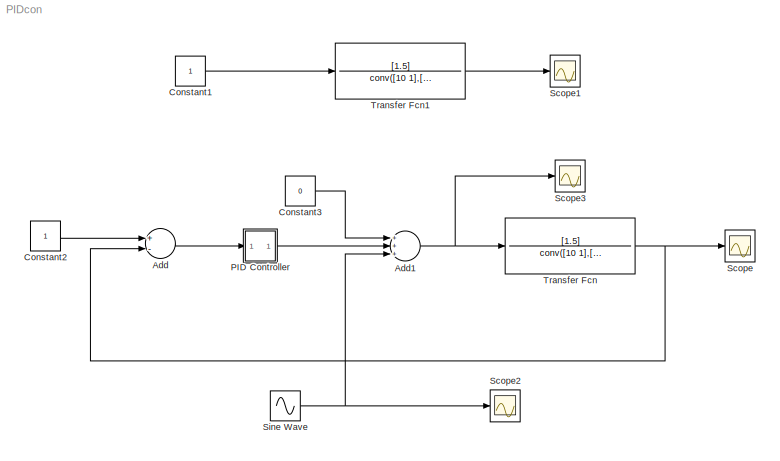
MODEL PIDcon
KIND model
BLOCK [Sum] Add
  InputSameDT = off
  Inputs = +-
  OutDataTypeStr = Inherit: Inherit via internal rule
  Ports = [2, 1]
  SID = 1
  SaturateOnIntegerOverflow = off
BLOCK [Sum] Add1
  InputSameDT = off
  Inputs = +++
  OutDataTypeStr = Inherit: Inherit via internal rule
  Ports = [3, 1]
  SID = 2
  SaturateOnIntegerOverflow = off
BLOCK [Constant] Constant1
  SID = 3
BLOCK [Constant] Constant2
  SID = 4
BLOCK [Constant] Constant3
  SID = 5
  Value = 0
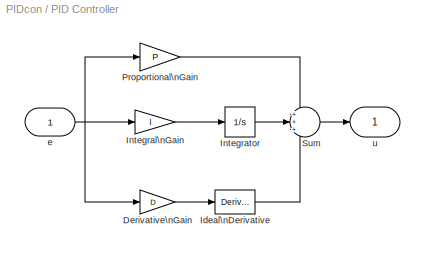
BLOCK [SubSystem] PID Controller
  AncestorBlock = simulink_need_slupdate/PID Controller
  FunctionWithSeparateData = off
  MaskCallbackString = ||
  MaskDescription = Enter expressions for proportional, integral, and derivative terms.\nP+I/s+Ds
  MaskDisplay = disp('PID')
  MaskEnableString = on,on,on
  MaskHelp = This block implements a PID controller where parameters are entered for the Proportional, Integral and Derivative terms. Unmask this block to see how it works. The derivative term is implemented using a true derivative block.
  MaskHideContents = off
  MaskIconFrame = on
  MaskIconOpaque = on
  MaskIconRotate = none
  MaskIconUnits = autoscale
  MaskPortRotate = default
  MaskPromptString = Proportional:|Integral:|Derivative:
  MaskStyleString = edit,edit,edit
  MaskToolTipString = on,on,on
  MaskTunableValueString = on,on,on
  MaskType = PID Controller
  MaskValueString = 8|0.01|0
  MaskVariables = P=@1;I=@2;D=@3;
  MaskVisibilityString = on,on,on
  MinAlgLoopOccurrences = off
  Opaque = off
  Ports = [1, 1]
  PropExecContextOutsideSubsystem = off
  RTWSystemCode = Auto
  RequestExecContextInheritance = off
  SID = 6
BLOCK [Gain] PID Controller/Derivative\nGain
  Gain = D
  SID = 6:18
BLOCK [Derivative] PID Controller/Ideal\nDerivative
  SID = 6:19
BLOCK [Gain] PID Controller/Integral\nGain
  Gain = I
  SID = 6:20
BLOCK [Integrator] PID Controller/Integrator
  Ports = [1, 1]
  SID = 6:21
BLOCK [Gain] PID Controller/Proportional\nGain
  Gain = P
  SID = 6:22
BLOCK [Sum] PID Controller/Sum
  IconShape = round
  Inputs = +++
  Ports = [3, 1]
  SID = 6:23
BLOCK [Inport] PID Controller/e
  IconDisplay = Port number
  SID = 6:17
BLOCK [Outport] PID Controller/u
  IconDisplay = Port number
  InitialOutput = 0
  SID = 6:24
BLOCK [Scope] Scope
  DataFormat = StructureWithTime
  Floating = off
  NumInputPorts = 1
  Ports = [1]
  SID = 7
  SampleTime = 0
BLOCK [Scope] Scope1
  DataFormat = StructureWithTime
  Floating = off
  NumInputPorts = 1
  Ports = [1]
  SID = 8
  SampleTime = 0
  SaveName = ScopeData1
  TimeRange = 100
BLOCK [Scope] Scope2
  DataFormat = StructureWithTime
  Floating = off
  LimitDataPoints = off
  NumInputPorts = 1
  Ports = [1]
  SID = 9
  SampleTime = 0
  SaveName = ScopeData2
BLOCK [Scope] Scope3
  DataFormat = StructureWithTime
  Floating = off
  NumInputPorts = 1
  Ports = [1]
  SID = 10
  SampleTime = 0
  SaveName = ScopeData3
  TimeRange = 100
BLOCK [Sin] Sine Wave
  Amplitude = 0
  Ports = [0, 1]
  SID = 11
  SampleTime = 0
BLOCK [TransferFcn] Transfer Fcn
  Denominator = conv([10 1],[10 1])
  Numerator = [1.5]
  SID = 12
BLOCK [TransferFcn] Transfer Fcn1
  Denominator = conv([10 1],[10 1])
  Numerator = [1.5]
  SID = 13
NET Add1:1 -> Scope3:1, Transfer Fcn:1
LINE Add:1 -> PID Controller:1
LINE Constant1:1 -> Transfer Fcn1:1
LINE Constant2:1 -> Add:1
LINE Constant3:1 -> Add1:1
LINE PID Controller/Derivative\nGain:1 -> PID Controller/Ideal\nDerivative:1
LINE PID Controller/Ideal\nDerivative:1 -> PID Controller/Sum:3
LINE PID Controller/Integral\nGain:1 -> PID Controller/Integrator:1
LINE PID Controller/Integrator:1 -> PID Controller/Sum:2
LINE PID Controller/Proportional\nGain:1 -> PID Controller/Sum:1
LINE PID Controller/Sum:1 -> PID Controller/u:1
NET PID Controller/e:1 -> PID Controller/Derivative\nGain:1, PID Controller/Integral\nGain:1, PID Controller/Proportional\nGain:1
LINE PID Controller:1 -> Add1:2
NET Sine Wave:1 -> Add1:3, Scope2:1
LINE Transfer Fcn1:1 -> Scope1:1
NET Transfer Fcn:1 -> Add:2, Scope:1
note: NET lines group one-source signal fan-out (src -> all destinations, sorted); 1:1 wires keep LINE
